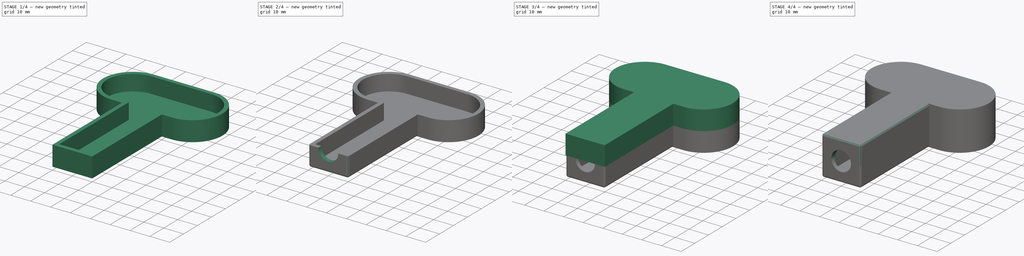
[diagram: build sequence overview — one tinted view per stage of 4, left to right]
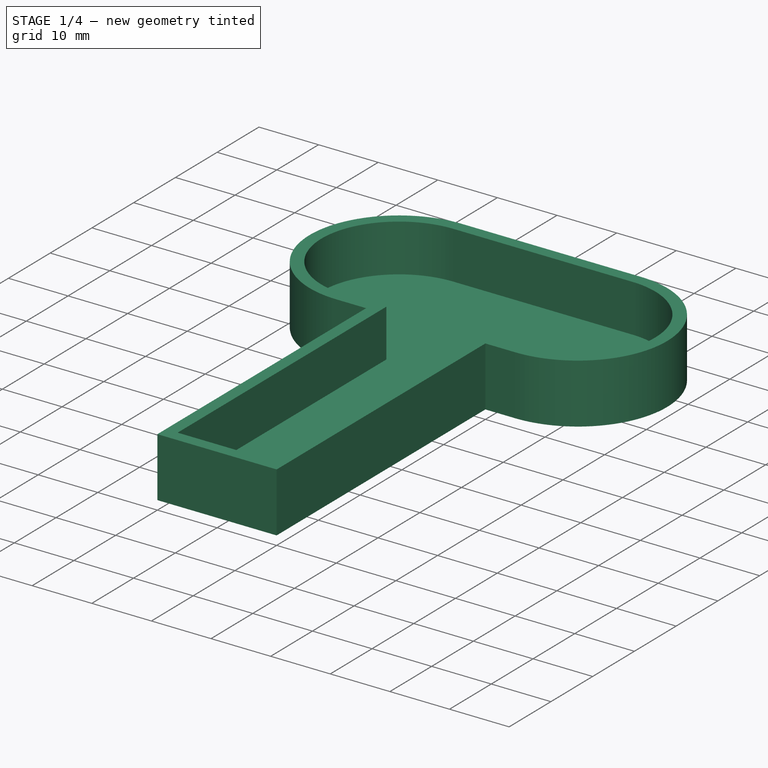
[diagram: stage 1 of 4 — iso view after this stage's code; geometry added in this stage tinted green]
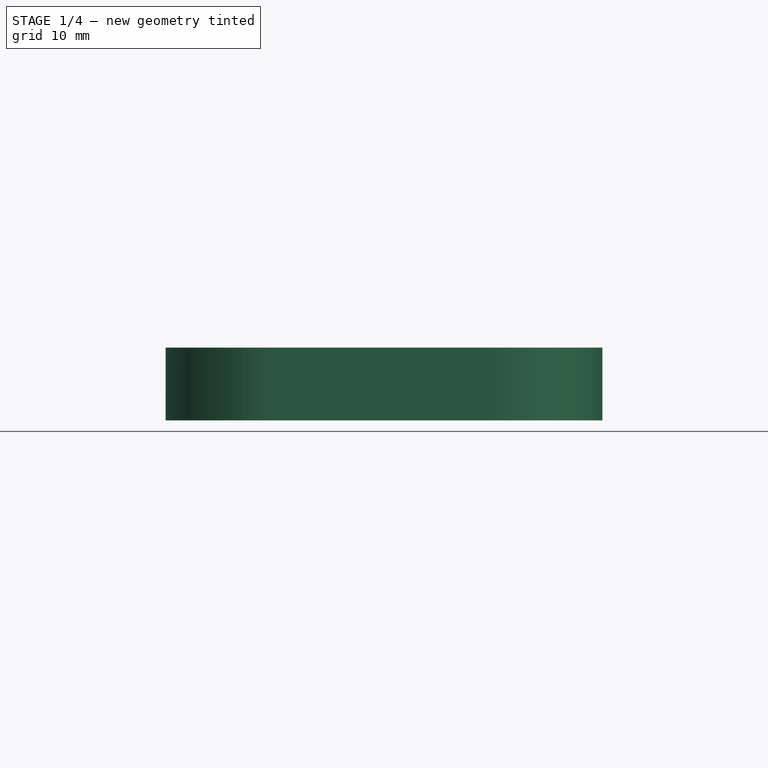
[diagram: stage 1 of 4 — front view after this stage's code; geometry added in this stage tinted green]
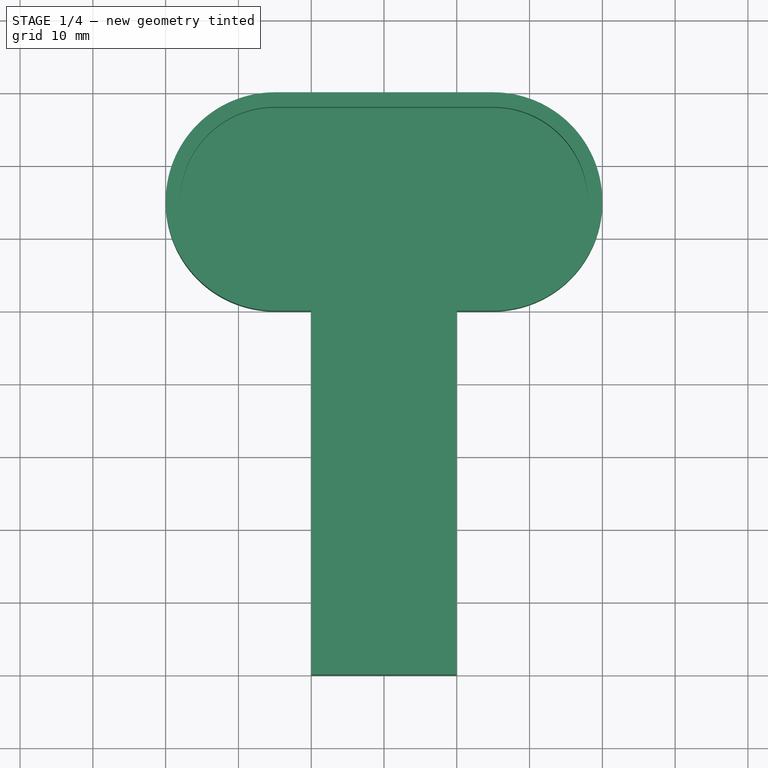
[diagram: stage 1 of 4 — top view after this stage's code; geometry added in this stage tinted green]
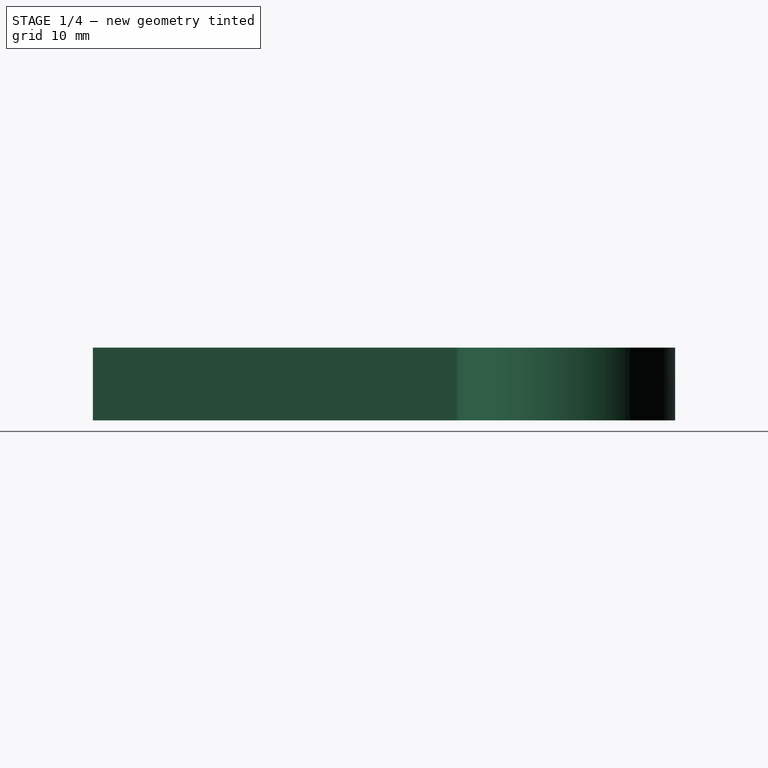
[diagram: stage 1 of 4 — right view after this stage's code; geometry added in this stage tinted green]
FCSTD DOCUMENT  (FreeCAD 0.19R24291 (Git))
Label: double_probe_5cm
License: All rights reserved
LicenseURL: http://en.wikipedia.org/wiki/All_rights_reserved
objects: Sketcher::SketchObject×8, PartDesign::Pocket×5, PartDesign::Fillet×4, PartDesign::Pad×3, PartDesign::Body×2, App::Part×1
note: 34 computed .brp shape members not serialized (recipe doc carries the construction recipe); baked Part::Feature solids carry a one-line shape summary decoded from their .brp

FEATURE [Sketcher::SketchObject] Sketch001
  AttachmentOffset = pos=(0,0,-1) rot=(0,0,1;0rad)
  FullyConstrained = true
  MapMode = 5
  Placement = pos=(0,0,-1) rot=(0,0,1;0rad)
  Support = -> [XY_Plane001]
  sketch-geometry (8):
    g0: LineSegment StartX=7 StartY=13 StartZ=0 EndX=15 EndY=13 EndZ=0
    g1: ArcOfCircle CenterX=15 CenterY=25 CenterZ=0 NormalX=0 NormalY=0 NormalZ=1 AngleXU=0 Radius=12 StartAngle=4.71239 EndAngle=7.85398
    g2: LineSegment StartX=15 StartY=37 StartZ=0 EndX=-15 EndY=37 EndZ=0
    g3: ArcOfCircle CenterX=-15 CenterY=25 CenterZ=0 NormalX=0 NormalY=0 NormalZ=1 AngleXU=0 Radius=12 StartAngle=1.5708 EndAngle=4.71239
    g4: LineSegment StartX=-15 StartY=13 StartZ=0 EndX=-7 EndY=13 EndZ=0
    g5: LineSegment StartX=-7 StartY=13 StartZ=0 EndX=-7 EndY=-37 EndZ=0
    g6: LineSegment StartX=-7 StartY=-37 StartZ=0 EndX=7 EndY=-37 EndZ=0
    g7: LineSegment StartX=7 StartY=-37 StartZ=0 EndX=7 EndY=13 EndZ=0
  constraints (20):
    c: Horizontal(g0)
    c: Tangent(g0,g1) = -1.5708
    c: Horizontal(g2)
    c: Tangent(g2,g3) = -1.5708
    c: Coincident(g4,g5)
    c: Vertical(g5)
    c: Coincident(g5,g6)
    c: Horizontal(g6)
    c: Coincident(g6,g7)
    c: Coincident(g7,g0)
    c: Vertical(g7)
    c: Tangent(g1,g2) = -1.5708
    c: Tangent(g3,g4) = -1.5708
    c: Symmetric(g4,g0,g-2)
    c: Symmetric(g1,g3,g-2)
    c: Radius(g3) = 12
    c: DistanceX(g4,g0) = 14
    c: DistanceY(g5,g4) = 50
    c: DistanceY(g-1,g4) = 13
    c: DistanceX(g0,g0) = 8
FEATURE [Sketcher::SketchObject] Sketch002
  FullyConstrained = true
  MapMode = 5
  Support = -> [XY_Plane002]
  sketch-geometry (8):
    g0: LineSegment StartX=7 StartY=13 StartZ=0 EndX=15 EndY=13 EndZ=0
    g1: ArcOfCircle CenterX=15 CenterY=25 CenterZ=0 NormalX=0 NormalY=0 NormalZ=1 AngleXU=0 Radius=12 StartAngle=4.71239 EndAngle=7.85398
    g2: LineSegment StartX=15 StartY=37 StartZ=0 EndX=-15 EndY=37 EndZ=0
    g3: ArcOfCircle CenterX=-15 CenterY=25 CenterZ=0 NormalX=0 NormalY=0 NormalZ=1 AngleXU=0 Radius=12 StartAngle=1.5708 EndAngle=4.71239
    g4: LineSegment StartX=-15 StartY=13 StartZ=0 EndX=-7 EndY=13 EndZ=0
    g5: LineSegment StartX=-7 StartY=13 StartZ=0 EndX=-7 EndY=-37 EndZ=0
    g6: LineSegment StartX=-7 StartY=-37 StartZ=0 EndX=7 EndY=-37 EndZ=0
    g7: LineSegment StartX=7 StartY=-37 StartZ=0 EndX=7 EndY=13 EndZ=0
  constraints (20):
    c: Horizontal(g0)
    c: Tangent(g0,g1) = -1.5708
    c: Horizontal(g2)
    c: Tangent(g2,g3) = -1.5708
    c: Coincident(g4,g5)
    c: Vertical(g5)
    c: Coincident(g5,g6)
    c: Horizontal(g6)
    c: Coincident(g6,g7)
    c: Coincident(g7,g0)
    c: Vertical(g7)
    c: Tangent(g1,g2) = -1.5708
    c: Tangent(g3,g4) = -1.5708
    c: Symmetric(g4,g0,g-2)
    c: Symmetric(g1,g3,g-2)
    c: Radius(g3) = 12
    c: DistanceX(g4,g0) = 14
    c: DistanceY(g5,g4) = 50
    c: DistanceY(g-1,g4) = 13
    c: DistanceX(g0,g0) = 8
FEATURE [Sketcher::SketchObject] Sketch003
  AttachmentOffset = pos=(0,0,-10) rot=(0,0,1;0rad)
  FullyConstrained = true
  MapMode = 5
  Placement = pos=(0,0,-10) rot=(0,0,1;0rad)
  Support = -> [XY_Plane002]
  sketch-geometry (8):
    g0: LineSegment StartX=10 StartY=10 StartZ=0 EndX=15 EndY=10 EndZ=0
    g1: ArcOfCircle CenterX=15 CenterY=25 CenterZ=0 NormalX=0 NormalY=0 NormalZ=1 AngleXU=0 Radius=15 StartAngle=4.71239 EndAngle=7.85398
    g2: LineSegment StartX=15 StartY=40 StartZ=0 EndX=-15 EndY=40 EndZ=0
    g3: ArcOfCircle CenterX=-15 CenterY=25 CenterZ=0 NormalX=0 NormalY=0 NormalZ=1 AngleXU=0 Radius=15 StartAngle=1.5708 EndAngle=4.71239
    g4: LineSegment StartX=-15 StartY=10 StartZ=0 EndX=-10 EndY=10 EndZ=0
    g5: LineSegment StartX=-10 StartY=10 StartZ=0 EndX=-10 EndY=-40 EndZ=0
    g6: LineSegment StartX=-10 StartY=-40 StartZ=0 EndX=10 EndY=-40 EndZ=0
    g7: LineSegment StartX=10 StartY=-40 StartZ=0 EndX=10 EndY=10 EndZ=0
  constraints (20):
    c: Horizontal(g0)
    c: Tangent(g0,g1) = -1.5708
    c: Horizontal(g2)
    c: Tangent(g2,g3) = -1.5708
    c: Coincident(g4,g5)
    c: Vertical(g5)
    c: Coincident(g5,g6)
    c: Horizontal(g6)
    c: Coincident(g6,g7)
    c: Coincident(g7,g0)
    c: Vertical(g7)
    c: Tangent(g1,g2) = -1.5708
    c: Tangent(g3,g4) = -1.5708
    c: Symmetric(g4,g0,g-2)
    c: Symmetric(g1,g3,g-2)
    c: Radius(g3) = 15
    c: DistanceX(g4,g0) = 20
    c: DistanceY(g5,g4) = 50
    c: DistanceY(g-1,g4) = 10
    c: DistanceX(g0,g0) = 5
FEATURE [PartDesign::Pad] Pad001
  Direction = (1,1,1)
  Length = 10
  Length2 = 100
  Profile = -> Sketch003
  Refine = true
  Type = 0
FEATURE [Sketcher::SketchObject] Sketch007
  FullyConstrained = true
  MapMode = 5
  Support = -> [XY_Plane002]
  sketch-geometry (8):
    g0: LineSegment StartX=8 StartY=12 StartZ=0 EndX=15 EndY=12 EndZ=0
    g1: ArcOfCircle CenterX=15 CenterY=25 CenterZ=0 NormalX=0 NormalY=0 NormalZ=1 AngleXU=0 Radius=13 StartAngle=4.71239 EndAngle=7.85398
    g2: LineSegment StartX=15 StartY=38 StartZ=0 EndX=-15 EndY=38 EndZ=0
    g3: ArcOfCircle CenterX=-15 CenterY=25 CenterZ=0 NormalX=0 NormalY=0 NormalZ=1 AngleXU=0 Radius=13 StartAngle=1.5708 EndAngle=4.71239
    g4: LineSegment StartX=-15 StartY=12 StartZ=0 EndX=-8 EndY=12 EndZ=0
    g5: LineSegment StartX=-8 StartY=12 StartZ=0 EndX=-8 EndY=-38 EndZ=0
    g6: LineSegment StartX=-8 StartY=-38 StartZ=0 EndX=8 EndY=-38 EndZ=0
    g7: LineSegment StartX=8 StartY=-38 StartZ=0 EndX=8 EndY=12 EndZ=0
  constraints (20):
    c: Horizontal(g0)
    c: Tangent(g0,g1) = -1.5708
    c: Horizontal(g2)
    c: Tangent(g2,g3) = -1.5708
    c: Coincident(g4,g5)
    c: Vertical(g5)
    c: Coincident(g5,g6)
    c: Horizontal(g6)
    c: Coincident(g6,g7)
    c: Coincident(g7,g0)
    c: Vertical(g7)
    c: Tangent(g1,g2) = -1.5708
    c: Tangent(g3,g4) = -1.5708
    c: Symmetric(g4,g0,g-2)
    c: Symmetric(g1,g3,g-2)
    c: Radius(g3) = 13
    c: DistanceX(g4,g0) = 16
    c: DistanceY(g5,g4) = 50
    c: DistanceY(g-1,g4) = 12
    c: DistanceX(g0,g0) = 7
FEATURE [PartDesign::Pocket] Pocket004
  BaseFeature = -> Pad001
  Length = 8
  Length2 = 100
  Profile = -> Sketch007
  Refine = true
  Type = 0
FEATURE [PartDesign::Pocket] Pocket001
  BaseFeature = -> Pocket004
  Length = 1
  Length2 = 100
  Profile = -> Sketch002
  Refine = true
  Type = 0
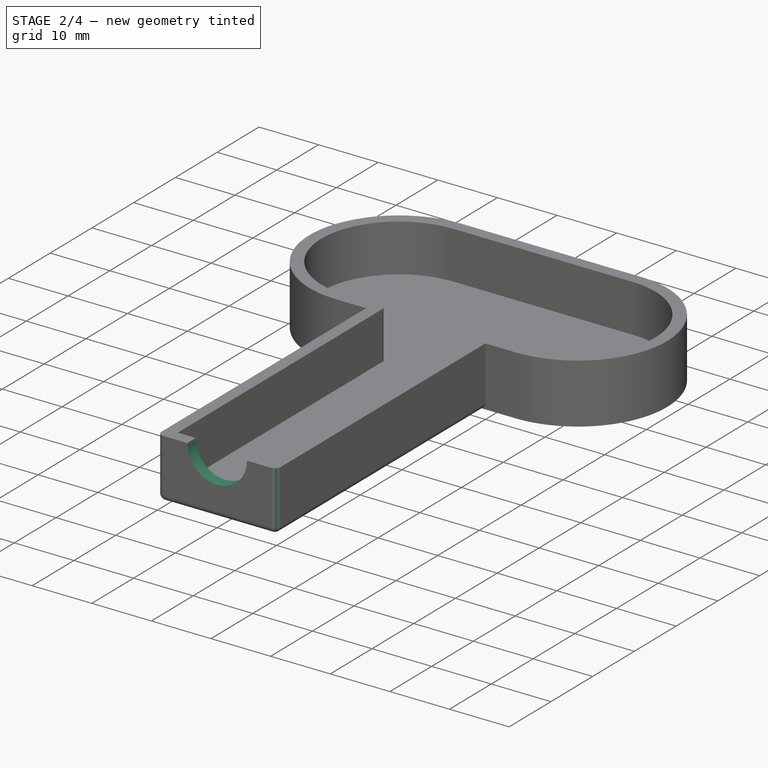
[diagram: stage 2 of 4 — iso view after this stage's code; geometry added in this stage tinted green]
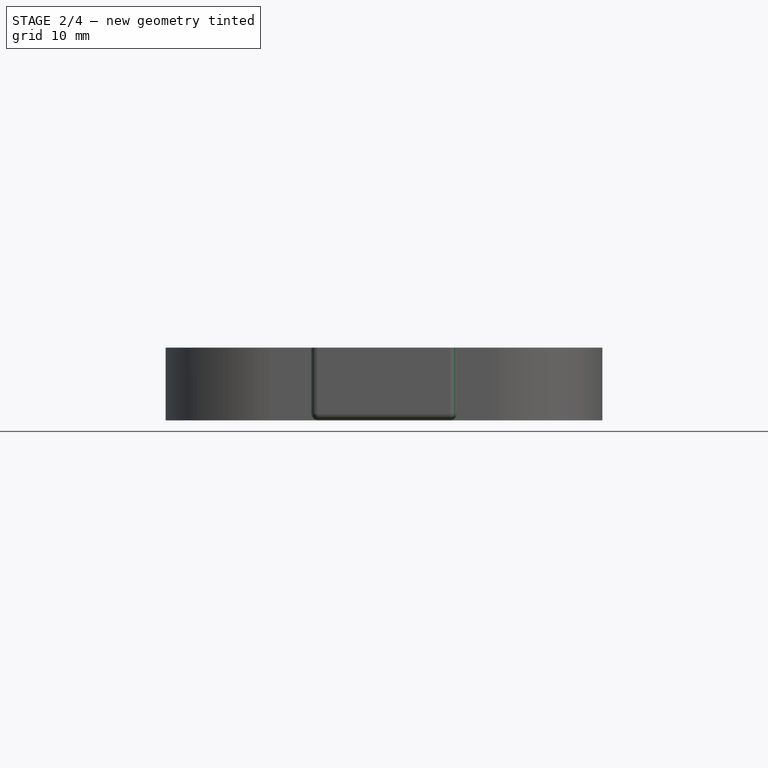
[diagram: stage 2 of 4 — front view after this stage's code; geometry added in this stage tinted green]
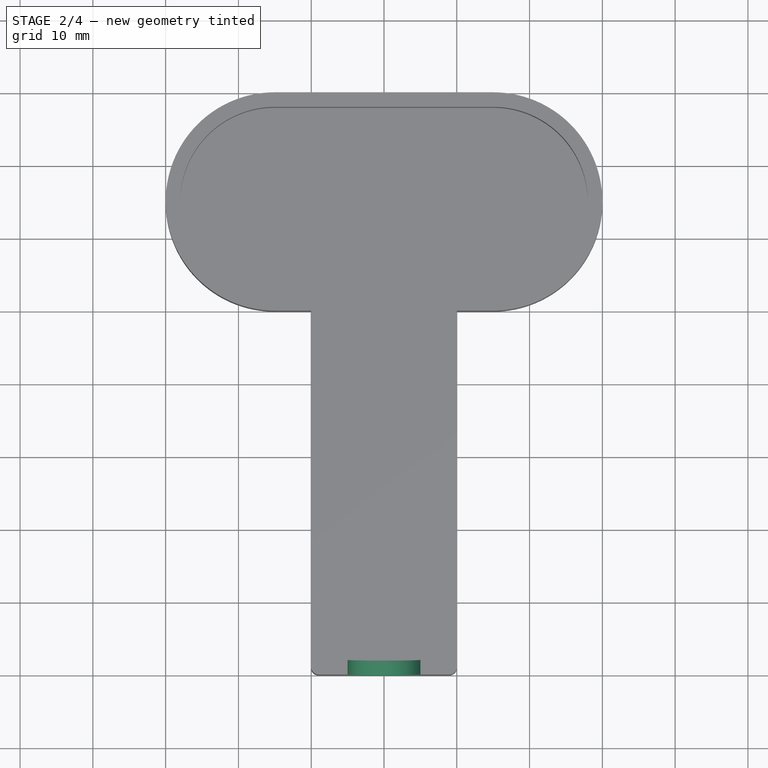
[diagram: stage 2 of 4 — top view after this stage's code; geometry added in this stage tinted green]
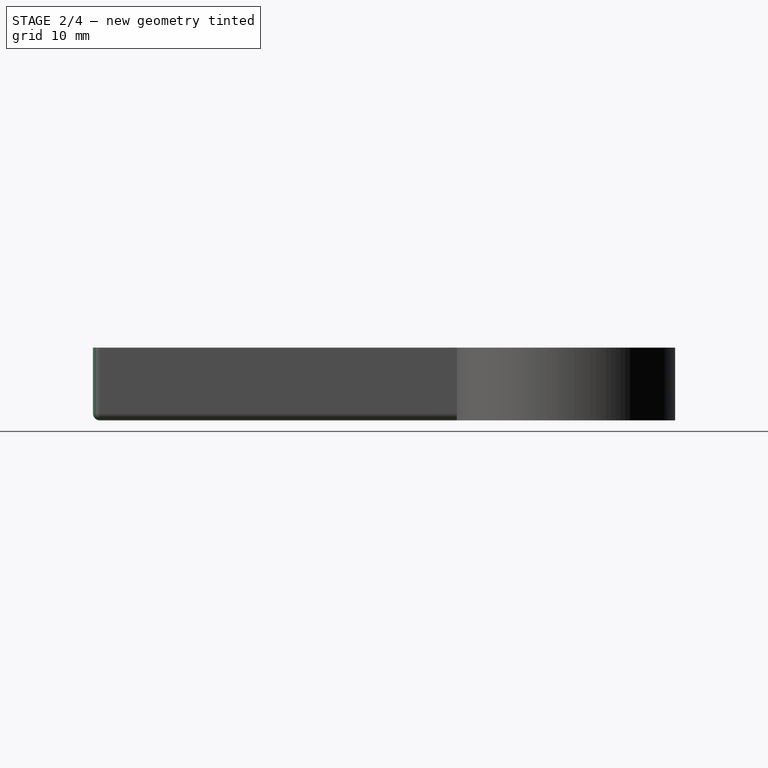
[diagram: stage 2 of 4 — right view after this stage's code; geometry added in this stage tinted green]
FEATURE [PartDesign::Pocket] Pocket003
  BaseFeature = -> Pocket001
  Length = 5
  Length2 = 100
  Profile = -> Sketch005
  Refine = true
  Type = 0
FEATURE [PartDesign::Body] Body  label="Bottom"
  Group = -> [Sketch,Pad,Pad002,Sketch001,Pocket,Sketch004,Pocket002,Sketch006,Fillet,Fillet001]
  Origin = -> Origin001
  Tip = -> Fillet001
FEATURE [PartDesign::Fillet] Fillet002
  Base = -> Pocket003 [Edge52,Edge42]
  BaseFeature = -> Pocket003
  Radius = 1
  Refine = true
  SupportTransform = false
FEATURE [PartDesign::Fillet] Fillet003
  Base = -> Fillet002 [Edge37,Edge36,Edge60,Edge38,Edge42]
  BaseFeature = -> Fillet002
  Radius = 1
  Refine = true
  SupportTransform = false
FEATURE [PartDesign::Body] Body001  label="Top"
  Group = -> [Sketch003,Pad001,Pocket004,Sketch002,Pocket001,Sketch005,Pocket003,Sketch007,Fillet002,Fillet003]
  Origin = -> Origin002
  Tip = -> Fillet003
FEATURE [App::Part] Part
  Group = -> [Body,Body001]
  Origin = -> Origin
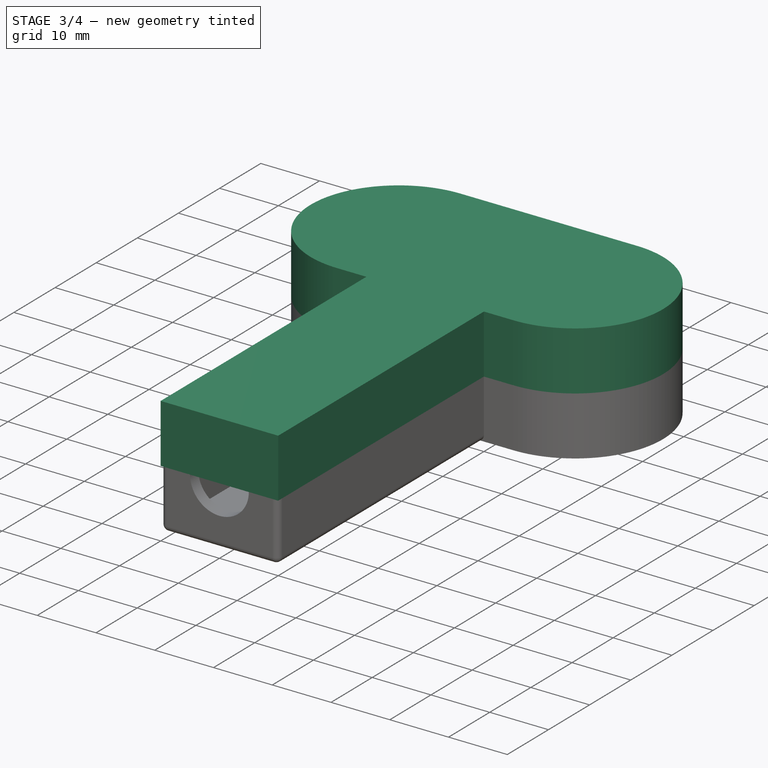
[diagram: stage 3 of 4 — iso view after this stage's code; geometry added in this stage tinted green]
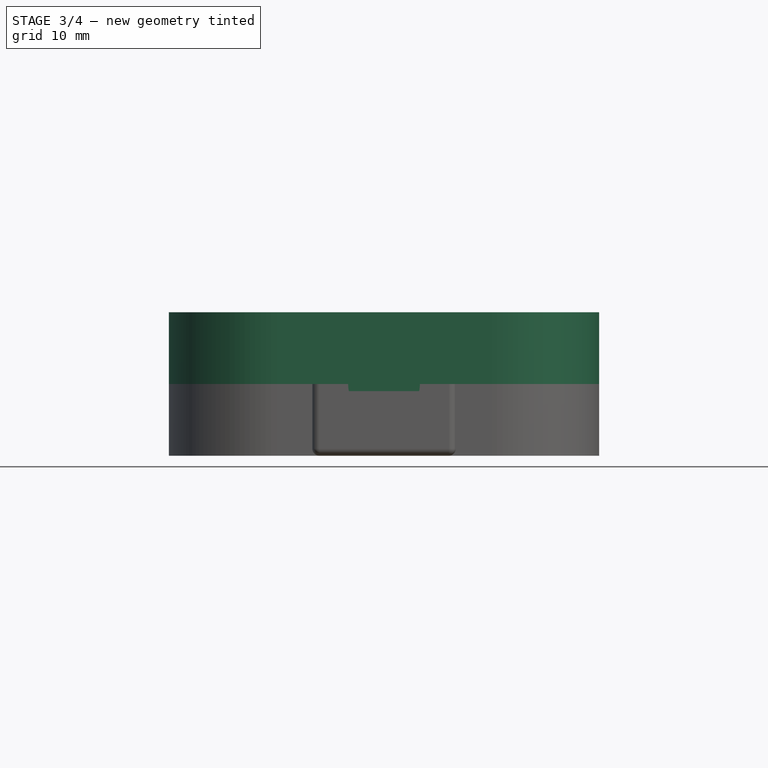
[diagram: stage 3 of 4 — front view after this stage's code; geometry added in this stage tinted green]
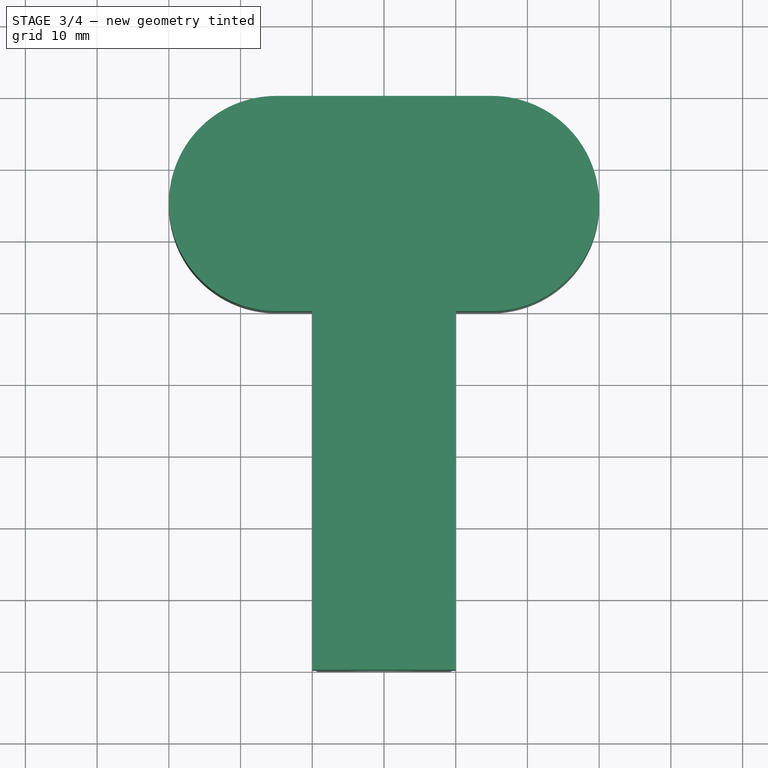
[diagram: stage 3 of 4 — top view after this stage's code; geometry added in this stage tinted green]
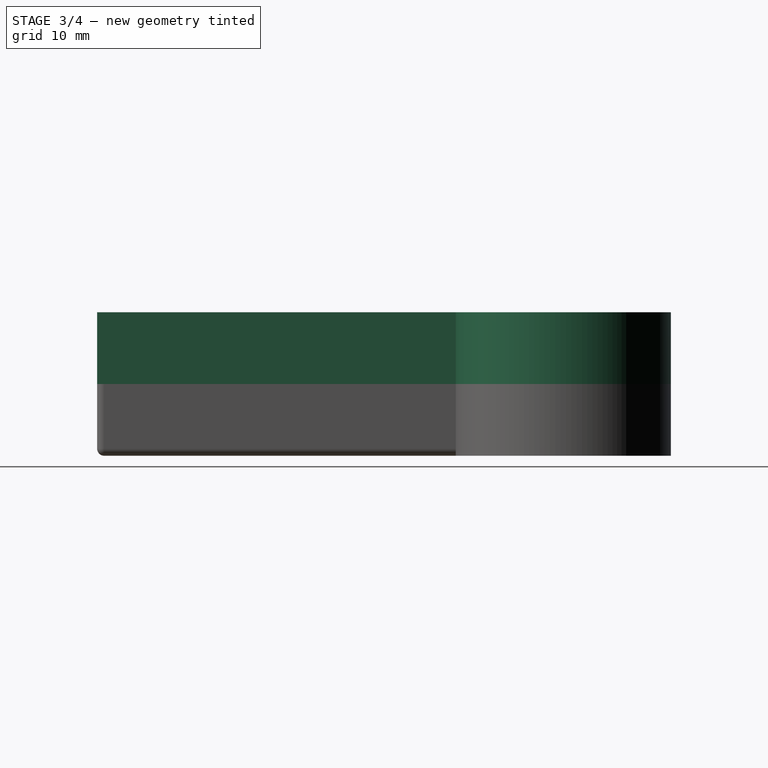
[diagram: stage 3 of 4 — right view after this stage's code; geometry added in this stage tinted green]
FEATURE [Sketcher::SketchObject] Sketch
  FullyConstrained = true
  MapMode = 5
  Support = -> [XY_Plane001]
  sketch-geometry (8):
    g0: LineSegment StartX=10 StartY=10 StartZ=0 EndX=15 EndY=10 EndZ=0
    g1: ArcOfCircle CenterX=15 CenterY=25 CenterZ=0 NormalX=0 NormalY=0 NormalZ=1 AngleXU=0 Radius=15 StartAngle=4.71239 EndAngle=7.85398
    g2: LineSegment StartX=15 StartY=40 StartZ=0 EndX=-15 EndY=40 EndZ=0
    g3: ArcOfCircle CenterX=-15 CenterY=25 CenterZ=0 NormalX=0 NormalY=0 NormalZ=1 AngleXU=0 Radius=15 StartAngle=1.5708 EndAngle=4.71239
    g4: LineSegment StartX=-15 StartY=10 StartZ=0 EndX=-10 EndY=10 EndZ=0
    g5: LineSegment StartX=-10 StartY=10 StartZ=0 EndX=-10 EndY=-40 EndZ=0
    g6: LineSegment StartX=-10 StartY=-40 StartZ=0 EndX=10 EndY=-40 EndZ=0
    g7: LineSegment StartX=10 StartY=-40 StartZ=0 EndX=10 EndY=10 EndZ=0
  constraints (20):
    c: Horizontal(g0)
    c: Tangent(g0,g1) = -1.5708
    c: Horizontal(g2)
    c: Tangent(g2,g3) = -1.5708
    c: Coincident(g4,g5)
    c: Vertical(g5)
    c: Coincident(g5,g6)
    c: Horizontal(g6)
    c: Coincident(g6,g7)
    c: Coincident(g7,g0)
    c: Vertical(g7)
    c: Tangent(g1,g2) = -1.5708
    c: Tangent(g3,g4) = -1.5708
    c: Symmetric(g4,g0,g-2)
    c: Symmetric(g1,g3,g-2)
    c: Radius(g3) = 15
    c: DistanceX(g4,g0) = 20
    c: DistanceY(g5,g4) = 50
    c: DistanceY(g-1,g4) = 10
    c: DistanceX(g0,g0) = 5
FEATURE [PartDesign::Pad] Pad
  Direction = (1,1,1)
  Length = 10
  Length2 = 100
  Profile = -> Sketch
  Refine = true
  Type = 0
FEATURE [Sketcher::SketchObject] Sketch004
  AttachmentOffset = pos=(0,0,40) rot=(0,0,1;0rad)
  FullyConstrained = true
  MapMode = 5
  Placement = pos=(0,-40,8.9e-15) rot=(1,0,0;1.5708rad)
  Support = -> [XZ_Plane001]
  sketch-geometry (1):
    g0: Circle CenterX=0 CenterY=0 CenterZ=0 NormalX=0 NormalY=0 NormalZ=1 AngleXU=0 Radius=5
  constraints (3):
    c: PointOnObject(g0,g-2)
    c: DistanceY(g-1,g0) = 0
    c: Radius(g0) = 5
FEATURE [Sketcher::SketchObject] Sketch005
  AttachmentOffset = pos=(0,0,40) rot=(0,0,1;0rad)
  FullyConstrained = true
  MapMode = 5
  Placement = pos=(0,-40,-8.9e-15) rot=(1,0,0;1.5708rad)
  Support = -> [XZ_Plane002]
  sketch-geometry (1):
    g0: Circle CenterX=0 CenterY=0 CenterZ=0 NormalX=0 NormalY=0 NormalZ=1 AngleXU=0 Radius=5
  constraints (2):
    c: Radius(g0) = 5
    c: Coincident(g0,g-1)
FEATURE [Sketcher::SketchObject] Sketch006
  AttachmentOffset = pos=(0,0,10) rot=(0,0,1;0rad)
  FullyConstrained = true
  MapMode = 5
  Placement = pos=(0,0,10) rot=(0,0,1;0rad)
  Support = -> [XY_Plane001]
  sketch-geometry (8):
    g0: LineSegment StartX=8 StartY=12 StartZ=0 EndX=15 EndY=12 EndZ=0
    g1: ArcOfCircle CenterX=15 CenterY=25 CenterZ=0 NormalX=0 NormalY=0 NormalZ=1 AngleXU=0 Radius=13 StartAngle=4.71239 EndAngle=7.85398
    g2: LineSegment StartX=15 StartY=38 StartZ=0 EndX=-15 EndY=38 EndZ=0
    g3: ArcOfCircle CenterX=-15 CenterY=25 CenterZ=0 NormalX=0 NormalY=0 NormalZ=1 AngleXU=0 Radius=13 StartAngle=1.5708 EndAngle=4.71239
    g4: LineSegment StartX=-15 StartY=12 StartZ=0 EndX=-8 EndY=12 EndZ=0
    g5: LineSegment StartX=-8 StartY=12 StartZ=0 EndX=-8 EndY=-38 EndZ=0
    g6: LineSegment StartX=-8 StartY=-38 StartZ=0 EndX=8 EndY=-38 EndZ=0
    g7: LineSegment StartX=8 StartY=-38 StartZ=0 EndX=8 EndY=12 EndZ=0
  constraints (20):
    c: Horizontal(g0)
    c: Tangent(g0,g1) = -1.5708
    c: Horizontal(g2)
    c: Tangent(g2,g3) = -1.5708
    c: Coincident(g4,g5)
    c: Vertical(g5)
    c: Coincident(g5,g6)
    c: Horizontal(g6)
    c: Coincident(g6,g7)
    c: Coincident(g7,g0)
    c: Vertical(g7)
    c: Tangent(g1,g2) = -1.5708
    c: Tangent(g3,g4) = -1.5708
    c: Symmetric(g4,g0,g-2)
    c: Symmetric(g1,g3,g-2)
    c: Radius(g3) = 13
    c: DistanceX(g4,g0) = 16
    c: DistanceY(g5,g4) = 50
    c: DistanceY(g-1,g4) = 12
    c: DistanceX(g0,g0) = 7
FEATURE [PartDesign::Pad] Pad002
  BaseFeature = -> Pad
  Direction = (1,1,1)
  Length = 11
  Length2 = 100
  Profile = -> Sketch006
  Refine = true
  Reversed = true
  Type = 0
FEATURE [PartDesign::Pocket] Pocket
  BaseFeature = -> Pad002
  Length = 9
  Length2 = 100
  Profile = -> Sketch001
  Refine = true
  Reversed = true
  Type = 0
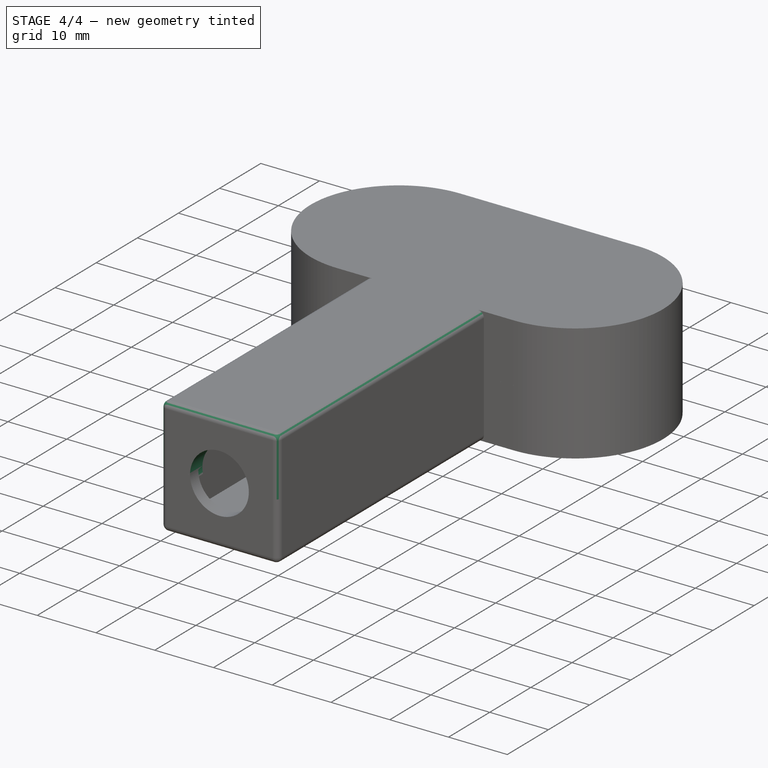
[diagram: stage 4 of 4 — iso view after this stage's code; geometry added in this stage tinted green]
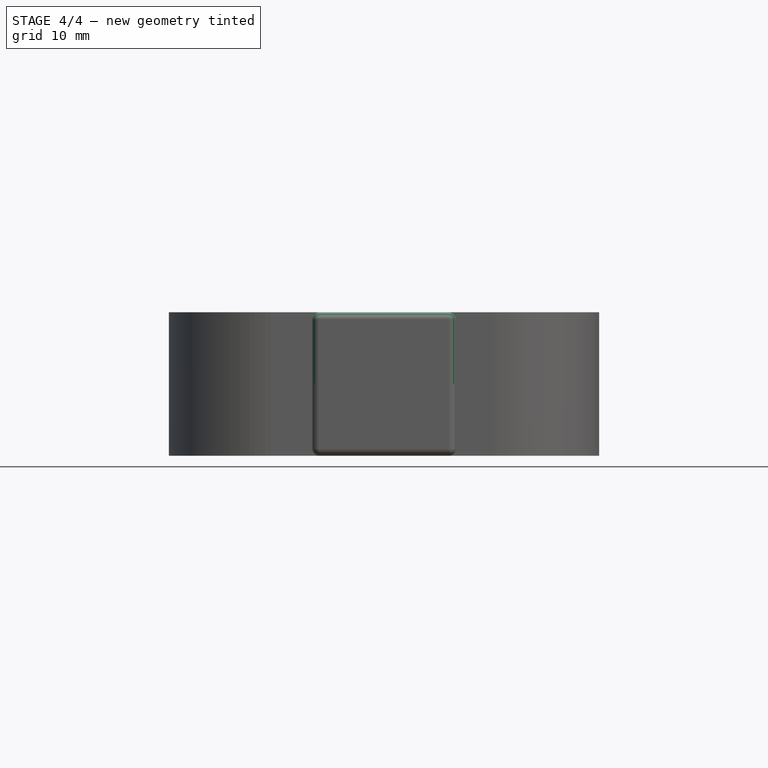
[diagram: stage 4 of 4 — front view after this stage's code; geometry added in this stage tinted green]
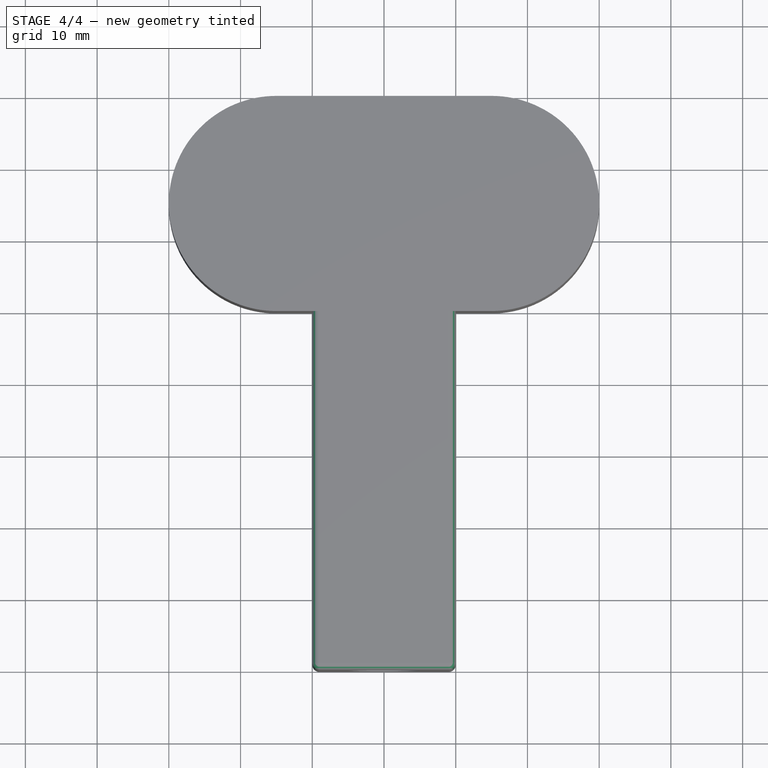
[diagram: stage 4 of 4 — top view after this stage's code; geometry added in this stage tinted green]
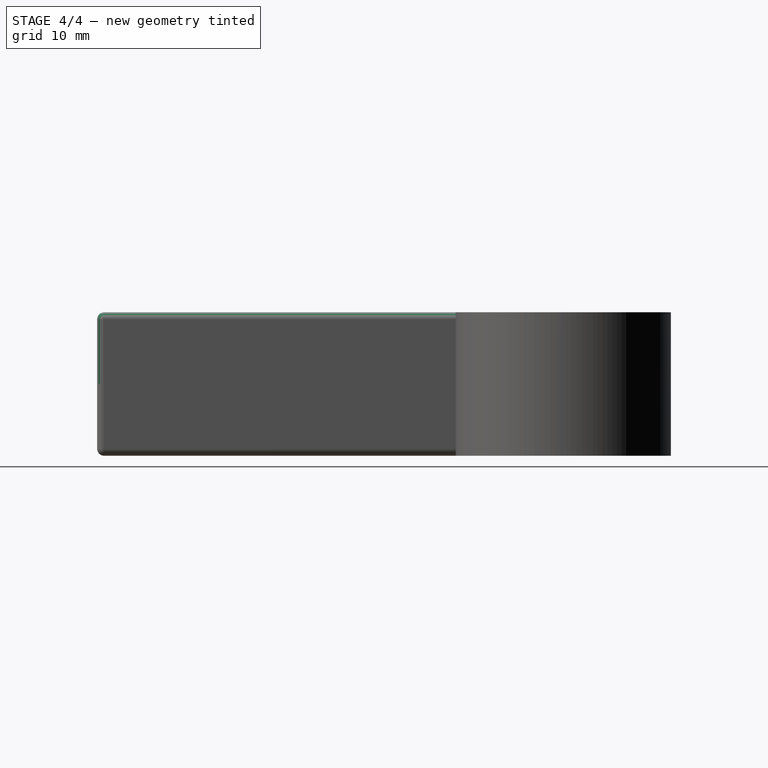
[diagram: stage 4 of 4 — right view after this stage's code; geometry added in this stage tinted green]
FEATURE [PartDesign::Pocket] Pocket002
  BaseFeature = -> Pocket
  Length = 5
  Length2 = 100
  Profile = -> Sketch004
  Refine = true
  Type = 0
FEATURE [PartDesign::Fillet] Fillet
  Base = -> Pocket002 [Edge83,Edge73]
  BaseFeature = -> Pocket002
  Radius = 1
  Refine = true
  SupportTransform = false
FEATURE [PartDesign::Fillet] Fillet001
  Base = -> Fillet [Edge80,Edge82,Edge77,Edge76,Edge78]
  BaseFeature = -> Fillet
  Radius = 1
  Refine = true
  SupportTransform = false
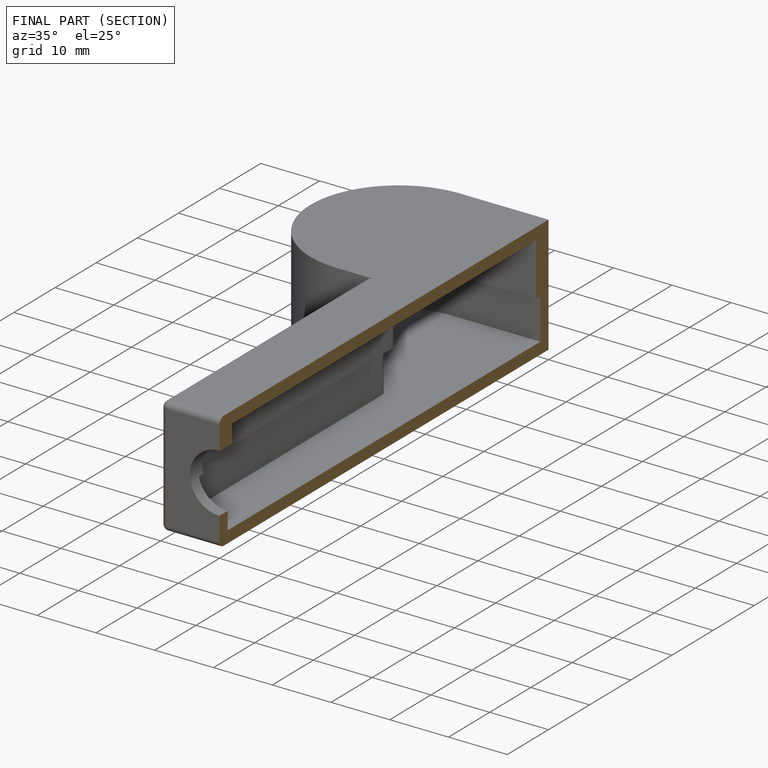
[diagram: finished part — half-section view (interior)]
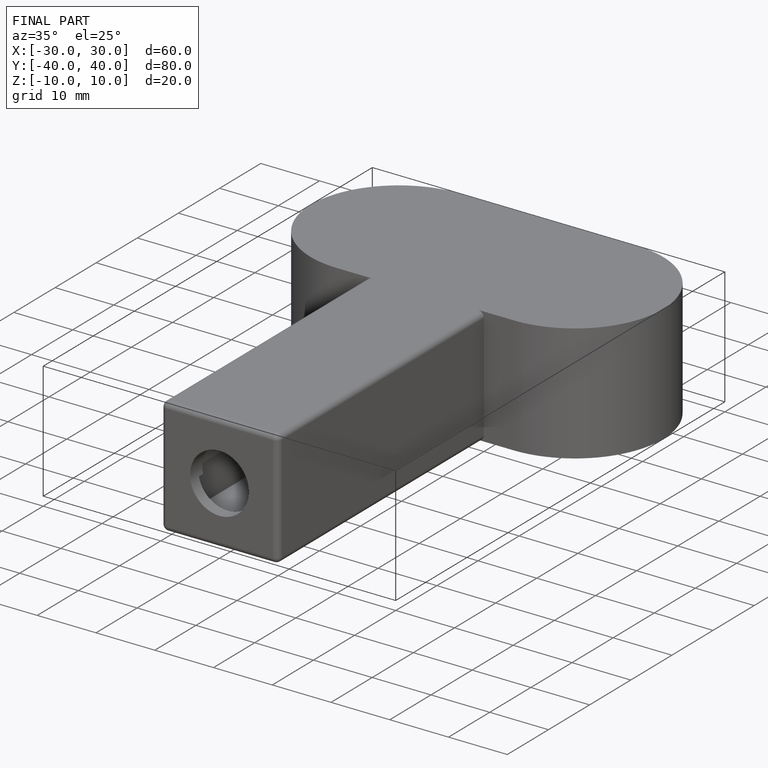
[diagram: finished part — iso view with bounding-box wireframe]
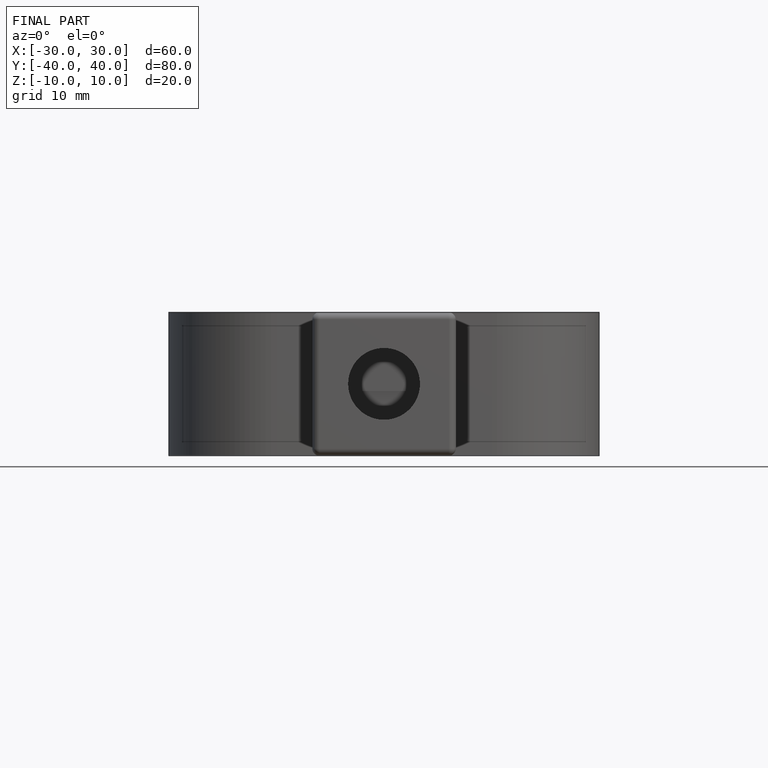
[diagram: finished part — front view with bounding-box wireframe]
